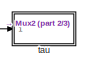
[diagram: root canvas - part 1/3, top right region]
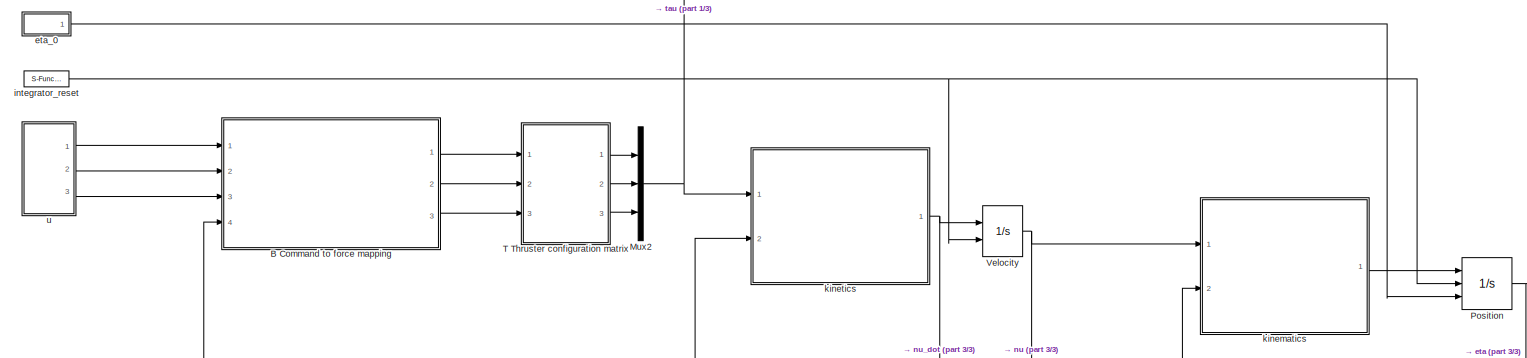
[diagram: root canvas - part 2/3, full width, middle band]
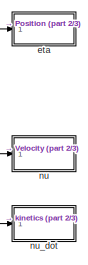
[diagram: root canvas - part 3/3, bottom right region]
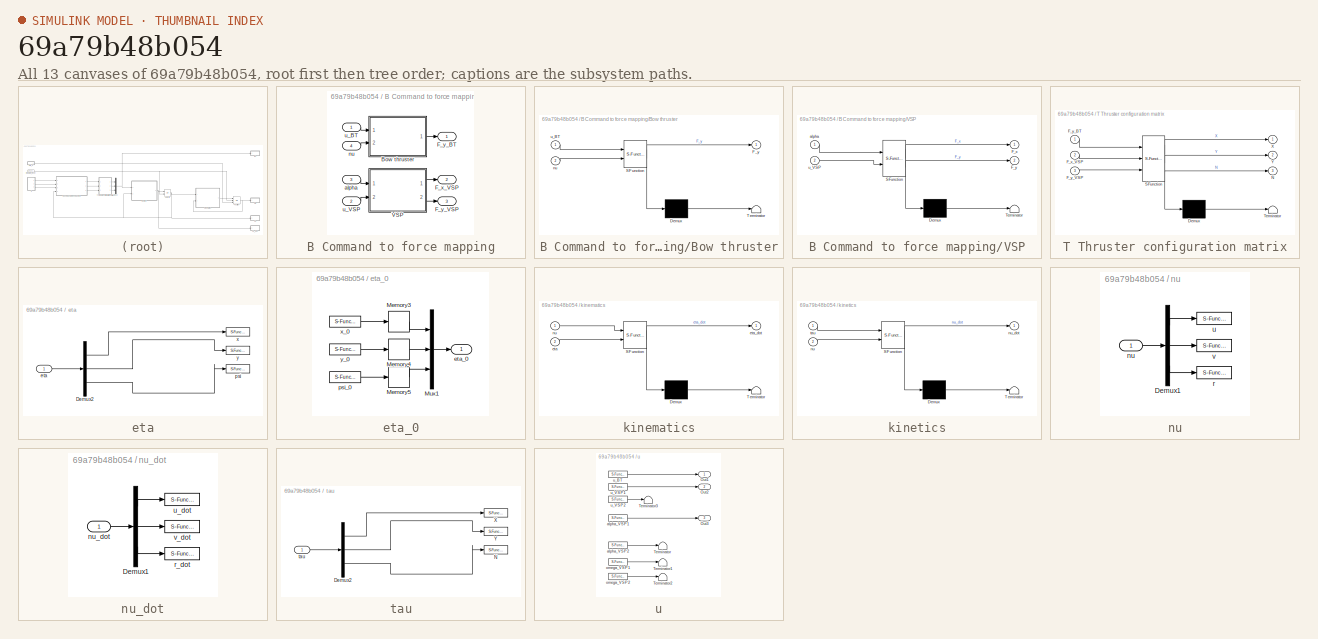
[diagram: thumbnail index - all 13 canvases of the model, root first then tree order]
MODEL slx_69a79b48b054
KIND model
BLOCK [SubSystem] B Command to force mapping
  Ports = [4, 3]
  RequestExecContextInheritance = off
BLOCK [SubSystem] B Command to force mapping/Bow thruster
  ErrorFcn = Stateflow.Translate.translate
  PermitHierarchicalResolution = ExplicitOnly
  Ports = [2, 1]
  RequestExecContextInheritance = off
  SFBlockType = MATLAB Function
  TreatAsAtomicUnit = on
BLOCK [Demux] B Command to force mapping/Bow thruster/ Demux 
  Outputs = 1
  Ports = [1, 1]
BLOCK [S-Function] B Command to force mapping/Bow thruster/ SFunction 
  EnableBusSupport = on
  FunctionName = sf_sfun
  PortCounts = [2 2]
  Ports = [2, 2]
  Tag = Stateflow S-Function CSEI_u 4
BLOCK [Terminator] B Command to force mapping/Bow thruster/ Terminator 
BLOCK [Outport] B Command to force mapping/Bow thruster/F_y
  IconDisplay = Port number
BLOCK [Inport] B Command to force mapping/Bow thruster/nu
  IconDisplay = Port number
  Port = 2
BLOCK [Inport] B Command to force mapping/Bow thruster/u_BT
  IconDisplay = Port number
BLOCK [Outport] B Command to force mapping/F_x_VSP
  IconDisplay = Port number
  Port = 2
BLOCK [Outport] B Command to force mapping/F_y_BT
  IconDisplay = Port number
BLOCK [Outport] B Command to force mapping/F_y_VSP
  IconDisplay = Port number
  Port = 3
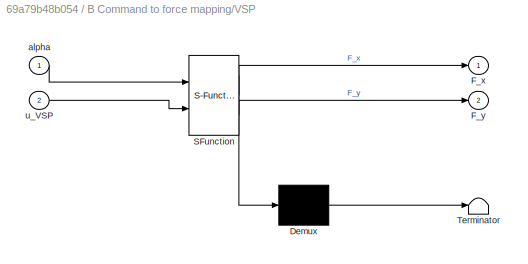
BLOCK [SubSystem] B Command to force mapping/VSP
  ErrorFcn = Stateflow.Translate.translate
  PermitHierarchicalResolution = ExplicitOnly
  Ports = [2, 2]
  RequestExecContextInheritance = off
  SFBlockType = MATLAB Function
  TreatAsAtomicUnit = on
BLOCK [Demux] B Command to force mapping/VSP/ Demux 
  Outputs = 1
  Ports = [1, 1]
BLOCK [S-Function] B Command to force mapping/VSP/ SFunction 
  EnableBusSupport = on
  FunctionName = sf_sfun
  PortCounts = [2 3]
  Ports = [2, 3]
  Tag = Stateflow S-Function CSEI_u 5
BLOCK [Terminator] B Command to force mapping/VSP/ Terminator 
BLOCK [Outport] B Command to force mapping/VSP/F_x
  IconDisplay = Port number
BLOCK [Outport] B Command to force mapping/VSP/F_y
  IconDisplay = Port number
  Port = 2
BLOCK [Inport] B Command to force mapping/VSP/alpha
  IconDisplay = Port number
BLOCK [Inport] B Command to force mapping/VSP/u_VSP
  IconDisplay = Port number
  Port = 2
BLOCK [Inport] B Command to force mapping/alpha
  IconDisplay = Port number
  Port = 3
BLOCK [Inport] B Command to force mapping/nu
  IconDisplay = Port number
  Port = 4
BLOCK [Inport] B Command to force mapping/u_BT
  IconDisplay = Port number
BLOCK [Inport] B Command to force mapping/u_VSP
  IconDisplay = Port number
  Port = 2
BLOCK [Mux] Mux2
  DisplayOption = bar
  Inputs = 3
  Ports = [3, 1]
BLOCK [Integrator] Position
  ExternalReset = either
  InitialCondition = [0 0 0]'
  InitialConditionSource = external
  Ports = [3, 1]
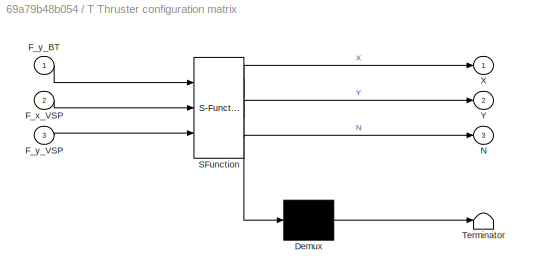
BLOCK [SubSystem] T Thruster configuration matrix
  ErrorFcn = Stateflow.Translate.translate
  PermitHierarchicalResolution = ExplicitOnly
  Ports = [3, 3]
  RequestExecContextInheritance = off
  SFBlockType = MATLAB Function
  TreatAsAtomicUnit = on
BLOCK [Demux] T Thruster configuration matrix/ Demux 
  Outputs = 1
  Ports = [1, 1]
BLOCK [S-Function] T Thruster configuration matrix/ SFunction 
  EnableBusSupport = on
  FunctionName = sf_sfun
  PortCounts = [3 4]
  Ports = [3, 4]
  Tag = Stateflow S-Function CSEI_u 3
BLOCK [Terminator] T Thruster configuration matrix/ Terminator 
BLOCK [Inport] T Thruster configuration matrix/F_x_VSP
  IconDisplay = Port number
  Port = 2
BLOCK [Inport] T Thruster configuration matrix/F_y_BT
  IconDisplay = Port number
BLOCK [Inport] T Thruster configuration matrix/F_y_VSP
  IconDisplay = Port number
  Port = 3
BLOCK [Outport] T Thruster configuration matrix/N
  IconDisplay = Port number
  Port = 3
BLOCK [Outport] T Thruster configuration matrix/X
  IconDisplay = Port number
BLOCK [Outport] T Thruster configuration matrix/Y
  IconDisplay = Port number
  Port = 2
BLOCK [Integrator] Velocity
  ExternalReset = either
  InitialCondition = [0 0 0]'
  Ports = [2, 1]
BLOCK [SubSystem] eta
  Ports = [1]
  RequestExecContextInheritance = off
BLOCK [Demux] eta/Demux2
  DisplayOption = bar
  Outputs = 3
  Ports = [1, 3]
BLOCK [Inport] eta/eta
  IconDisplay = Port number
BLOCK [S-Function] eta/psi
  CopyFcn = NIVeriStand_MDL_functions('', 'IO_copy');
  DeleteFcn = NIVeriStand_MDL_functions('', 'IO_delete');
  EnableBusSupport = off
  FunctionName = NIVeriStandIO
  MoveFcn = set_param(gcb, 'Mask', 'on');
  Parameters = width dtype portnum stime stype btype
  Ports = [1]
  Priority = 3
BLOCK [S-Function] eta/x
  CopyFcn = NIVeriStand_MDL_functions('', 'IO_copy');
  DeleteFcn = NIVeriStand_MDL_functions('', 'IO_delete');
  EnableBusSupport = off
  FunctionName = NIVeriStandIO
  MoveFcn = set_param(gcb, 'Mask', 'on');
  Parameters = width dtype portnum stime stype btype
  Ports = [1]
  Priority = 1
BLOCK [S-Function] eta/y
  CopyFcn = NIVeriStand_MDL_functions('', 'IO_copy');
  DeleteFcn = NIVeriStand_MDL_functions('', 'IO_delete');
  EnableBusSupport = off
  FunctionName = NIVeriStandIO
  MoveFcn = set_param(gcb, 'Mask', 'on');
  Parameters = width dtype portnum stime stype btype
  Ports = [1]
  Priority = 2
BLOCK [SubSystem] eta_0
  Ports = [0, 1]
  RequestExecContextInheritance = off
BLOCK [Memory] eta_0/Memory3
BLOCK [Memory] eta_0/Memory4
BLOCK [Memory] eta_0/Memory5
BLOCK [Mux] eta_0/Mux1
  DisplayOption = bar
  Inputs = 3
  Ports = [3, 1]
BLOCK [Outport] eta_0/eta_0
  IconDisplay = Port number
BLOCK [S-Function] eta_0/psi_0
  CopyFcn = NIVeriStand_MDL_functions('', 'IO_copy');
  DeleteFcn = NIVeriStand_MDL_functions('', 'IO_delete');
  EnableBusSupport = off
  FunctionName = NIVeriStandIO
  MoveFcn = set_param(gcb, 'Mask', 'on');
  Parameters = width dtype portnum stime stype btype
  Ports = [0, 1]
  Priority = 1
BLOCK [S-Function] eta_0/x_0
  CopyFcn = NIVeriStand_MDL_functions('', 'IO_copy');
  DeleteFcn = NIVeriStand_MDL_functions('', 'IO_delete');
  EnableBusSupport = off
  FunctionName = NIVeriStandIO
  MoveFcn = set_param(gcb, 'Mask', 'on');
  Parameters = width dtype portnum stime stype btype
  Ports = [0, 1]
  Priority = 2
BLOCK [S-Function] eta_0/y_0
  CopyFcn = NIVeriStand_MDL_functions('', 'IO_copy');
  DeleteFcn = NIVeriStand_MDL_functions('', 'IO_delete');
  EnableBusSupport = off
  FunctionName = NIVeriStandIO
  MoveFcn = set_param(gcb, 'Mask', 'on');
  Parameters = width dtype portnum stime stype btype
  Ports = [0, 1]
  Priority = 3
BLOCK [S-Function] integrator_reset
  CopyFcn = NIVeriStand_MDL_functions('', 'IO_copy');
  DeleteFcn = NIVeriStand_MDL_functions('', 'IO_delete');
  EnableBusSupport = off
  FunctionName = NIVeriStandIO
  MoveFcn = set_param(gcb, 'Mask', 'on');
  Parameters = width dtype portnum stime stype btype
  Ports = [0, 1]
  Priority = 1
BLOCK [SubSystem] kinematics
  ErrorFcn = Stateflow.Translate.translate
  PermitHierarchicalResolution = ExplicitOnly
  Ports = [2, 1]
  RequestExecContextInheritance = off
  SFBlockType = MATLAB Function
  TreatAsAtomicUnit = on
BLOCK [Demux] kinematics/ Demux 
  Outputs = 1
  Ports = [1, 1]
BLOCK [S-Function] kinematics/ SFunction 
  EnableBusSupport = on
  FunctionName = sf_sfun
  PortCounts = [2 2]
  Ports = [2, 2]
  Tag = Stateflow S-Function CSEI_u 1
BLOCK [Terminator] kinematics/ Terminator 
BLOCK [Inport] kinematics/eta
  IconDisplay = Port number
  Port = 2
BLOCK [Outport] kinematics/eta_dot
  IconDisplay = Port number
BLOCK [Inport] kinematics/nu
  IconDisplay = Port number
BLOCK [SubSystem] kinetics
  ErrorFcn = Stateflow.Translate.translate
  PermitHierarchicalResolution = ExplicitOnly
  Ports = [2, 1]
  RequestExecContextInheritance = off
  SFBlockType = MATLAB Function
  TreatAsAtomicUnit = on
BLOCK [Demux] kinetics/ Demux 
  Outputs = 1
  Ports = [1, 1]
BLOCK [S-Function] kinetics/ SFunction 
  EnableBusSupport = on
  FunctionName = sf_sfun
  PortCounts = [2 2]
  Ports = [2, 2]
  Tag = Stateflow S-Function CSEI_u 2
BLOCK [Terminator] kinetics/ Terminator 
BLOCK [Inport] kinetics/nu
  IconDisplay = Port number
  Port = 2
BLOCK [Outport] kinetics/nu_dot
  IconDisplay = Port number
BLOCK [Inport] kinetics/tau
  IconDisplay = Port number
BLOCK [SubSystem] nu
  Ports = [1]
  RequestExecContextInheritance = off
BLOCK [Demux] nu/Demux1
  DisplayOption = bar
  Outputs = 3
  Ports = [1, 3]
BLOCK [Inport] nu/nu
  IconDisplay = Port number
BLOCK [S-Function] nu/r
  CopyFcn = NIVeriStand_MDL_functions('', 'IO_copy');
  DeleteFcn = NIVeriStand_MDL_functions('', 'IO_delete');
  EnableBusSupport = off
  FunctionName = NIVeriStandIO
  MoveFcn = set_param(gcb, 'Mask', 'on');
  Parameters = width dtype portnum stime stype btype
  Ports = [1]
  Priority = 1
BLOCK [S-Function] nu/u
  CopyFcn = NIVeriStand_MDL_functions('', 'IO_copy');
  DeleteFcn = NIVeriStand_MDL_functions('', 'IO_delete');
  EnableBusSupport = off
  FunctionName = NIVeriStandIO
  MoveFcn = set_param(gcb, 'Mask', 'on');
  Parameters = width dtype portnum stime stype btype
  Ports = [1]
  Priority = 2
BLOCK [S-Function] nu/v
  CopyFcn = NIVeriStand_MDL_functions('', 'IO_copy');
  DeleteFcn = NIVeriStand_MDL_functions('', 'IO_delete');
  EnableBusSupport = off
  FunctionName = NIVeriStandIO
  MoveFcn = set_param(gcb, 'Mask', 'on');
  Parameters = width dtype portnum stime stype btype
  Ports = [1]
  Priority = 3
BLOCK [SubSystem] nu_dot
  Ports = [1]
  RequestExecContextInheritance = off
BLOCK [Demux] nu_dot/Demux1
  DisplayOption = bar
  Outputs = 3
  Ports = [1, 3]
BLOCK [Inport] nu_dot/nu_dot
  IconDisplay = Port number
BLOCK [S-Function] nu_dot/r_dot
  CopyFcn = NIVeriStand_MDL_functions('', 'IO_copy');
  DeleteFcn = NIVeriStand_MDL_functions('', 'IO_delete');
  EnableBusSupport = off
  FunctionName = NIVeriStandIO
  MoveFcn = set_param(gcb, 'Mask', 'on');
  Parameters = width dtype portnum stime stype btype
  Ports = [1]
  Priority = 1
BLOCK [S-Function] nu_dot/u_dot
  CopyFcn = NIVeriStand_MDL_functions('', 'IO_copy');
  DeleteFcn = NIVeriStand_MDL_functions('', 'IO_delete');
  EnableBusSupport = off
  FunctionName = NIVeriStandIO
  MoveFcn = set_param(gcb, 'Mask', 'on');
  Parameters = width dtype portnum stime stype btype
  Ports = [1]
  Priority = 2
BLOCK [S-Function] nu_dot/v_dot
  CopyFcn = NIVeriStand_MDL_functions('', 'IO_copy');
  DeleteFcn = NIVeriStand_MDL_functions('', 'IO_delete');
  EnableBusSupport = off
  FunctionName = NIVeriStandIO
  MoveFcn = set_param(gcb, 'Mask', 'on');
  Parameters = width dtype portnum stime stype btype
  Ports = [1]
  Priority = 3
BLOCK [SubSystem] tau
  Ports = [1]
  RequestExecContextInheritance = off
BLOCK [Demux] tau/Demux2
  DisplayOption = bar
  Outputs = 3
  Ports = [1, 3]
BLOCK [S-Function] tau/N
  CopyFcn = NIVeriStand_MDL_functions('', 'IO_copy');
  DeleteFcn = NIVeriStand_MDL_functions('', 'IO_delete');
  EnableBusSupport = off
  FunctionName = NIVeriStandIO
  MoveFcn = set_param(gcb, 'Mask', 'on');
  Parameters = width dtype portnum stime stype btype
  Ports = [1]
  Priority = 3
BLOCK [S-Function] tau/X
  CopyFcn = NIVeriStand_MDL_functions('', 'IO_copy');
  DeleteFcn = NIVeriStand_MDL_functions('', 'IO_delete');
  EnableBusSupport = off
  FunctionName = NIVeriStandIO
  MoveFcn = set_param(gcb, 'Mask', 'on');
  Parameters = width dtype portnum stime stype btype
  Ports = [1]
  Priority = 1
BLOCK [S-Function] tau/Y
  CopyFcn = NIVeriStand_MDL_functions('', 'IO_copy');
  DeleteFcn = NIVeriStand_MDL_functions('', 'IO_delete');
  EnableBusSupport = off
  FunctionName = NIVeriStandIO
  MoveFcn = set_param(gcb, 'Mask', 'on');
  Parameters = width dtype portnum stime stype btype
  Ports = [1]
  Priority = 2
BLOCK [Inport] tau/tau
  IconDisplay = Port number
BLOCK [SubSystem] u
  Ports = [0, 3]
  RequestExecContextInheritance = off
BLOCK [Outport] u/Out1
  IconDisplay = Port number
BLOCK [Outport] u/Out2
  IconDisplay = Port number
  Port = 2
BLOCK [Outport] u/Out3
  IconDisplay = Port number
  Port = 3
BLOCK [Terminator] u/Terminator
BLOCK [Terminator] u/Terminator1
BLOCK [Terminator] u/Terminator2
BLOCK [Terminator] u/Terminator3
BLOCK [S-Function] u/alpha_VSP1
  CopyFcn = NIVeriStand_MDL_functions('', 'IO_copy');
  DeleteFcn = NIVeriStand_MDL_functions('', 'IO_delete');
  EnableBusSupport = off
  FunctionName = NIVeriStandIO
  MoveFcn = set_param(gcb, 'Mask', 'on');
  Parameters = width dtype portnum stime stype btype
  Ports = [0, 1]
  Priority = 5
BLOCK [S-Function] u/alpha_VSP2
  CopyFcn = NIVeriStand_MDL_functions('', 'IO_copy');
  DeleteFcn = NIVeriStand_MDL_functions('', 'IO_delete');
  EnableBusSupport = off
  FunctionName = NIVeriStandIO
  MoveFcn = set_param(gcb, 'Mask', 'on');
  Parameters = width dtype portnum stime stype btype
  Ports = [0, 1]
  Priority = 6
BLOCK [S-Function] u/omega_VSP1
  CopyFcn = NIVeriStand_MDL_functions('', 'IO_copy');
  DeleteFcn = NIVeriStand_MDL_functions('', 'IO_delete');
  EnableBusSupport = off
  FunctionName = NIVeriStandIO
  MoveFcn = set_param(gcb, 'Mask', 'on');
  Parameters = width dtype portnum stime stype btype
  Ports = [0, 1]
  Priority = 7
BLOCK [S-Function] u/omega_VSP2
  CopyFcn = NIVeriStand_MDL_functions('', 'IO_copy');
  DeleteFcn = NIVeriStand_MDL_functions('', 'IO_delete');
  EnableBusSupport = off
  FunctionName = NIVeriStandIO
  MoveFcn = set_param(gcb, 'Mask', 'on');
  Parameters = width dtype portnum stime stype btype
  Ports = [0, 1]
  Priority = 8
BLOCK [S-Function] u/u_BT
  CopyFcn = NIVeriStand_MDL_functions('', 'IO_copy');
  DeleteFcn = NIVeriStand_MDL_functions('', 'IO_delete');
  EnableBusSupport = off
  FunctionName = NIVeriStandIO
  MoveFcn = set_param(gcb, 'Mask', 'on');
  Parameters = width dtype portnum stime stype btype
  Ports = [0, 1]
  Priority = 2
BLOCK [S-Function] u/u_VSP1
  CopyFcn = NIVeriStand_MDL_functions('', 'IO_copy');
  DeleteFcn = NIVeriStand_MDL_functions('', 'IO_delete');
  EnableBusSupport = off
  FunctionName = NIVeriStandIO
  MoveFcn = set_param(gcb, 'Mask', 'on');
  Parameters = width dtype portnum stime stype btype
  Ports = [0, 1]
  Priority = 3
BLOCK [S-Function] u/u_VSP2
  CopyFcn = NIVeriStand_MDL_functions('', 'IO_copy');
  DeleteFcn = NIVeriStand_MDL_functions('', 'IO_delete');
  EnableBusSupport = off
  FunctionName = NIVeriStandIO
  MoveFcn = set_param(gcb, 'Mask', 'on');
  Parameters = width dtype portnum stime stype btype
  Ports = [0, 1]
  Priority = 4
LINE B Command to force mapping/Bow thruster:1 -> B Command to force mapping/F_y_BT:1
LINE B Command to force mapping/VSP:1 -> B Command to force mapping/F_x_VSP:1
LINE B Command to force mapping/VSP:2 -> B Command to force mapping/F_y_VSP:1
LINE B Command to force mapping/alpha:1 -> B Command to force mapping/VSP:1
LINE B Command to force mapping/nu:1 -> B Command to force mapping/Bow thruster:2
LINE B Command to force mapping/u_BT:1 -> B Command to force mapping/Bow thruster:1
LINE B Command to force mapping/u_VSP:1 -> B Command to force mapping/VSP:2
LINE B Command to force mapping:1 -> T Thruster configuration matrix:1
LINE B Command to force mapping:2 -> T Thruster configuration matrix:2
LINE B Command to force mapping:3 -> T Thruster configuration matrix:3
NET Mux2:1 -> kinetics:1, tau:1
NET Position:1 -> eta:1, kinematics:2
LINE T Thruster configuration matrix:1 -> Mux2:1
LINE T Thruster configuration matrix:2 -> Mux2:2
LINE T Thruster configuration matrix:3 -> Mux2:3
NET Velocity:1 -> B Command to force mapping:4, kinematics:1, kinetics:2, nu:1
LINE eta/Demux2:1 -> eta/x:1
LINE eta/Demux2:2 -> eta/y:1
LINE eta/Demux2:3 -> eta/psi:1
LINE eta/eta:1 -> eta/Demux2:1
LINE eta_0/Memory3:1 -> eta_0/Mux1:1
LINE eta_0/Memory4:1 -> eta_0/Mux1:2
LINE eta_0/Memory5:1 -> eta_0/Mux1:3
LINE eta_0/Mux1:1 -> eta_0/eta_0:1
LINE eta_0/psi_0:1 -> eta_0/Memory5:1
LINE eta_0/x_0:1 -> eta_0/Memory3:1
LINE eta_0/y_0:1 -> eta_0/Memory4:1
LINE eta_0:1 -> Position:3
NET integrator_reset:1 -> Position:2, Velocity:2
LINE kinematics:1 -> Position:1
NET kinetics:1 -> Velocity:1, nu_dot:1
LINE nu/Demux1:1 -> nu/u:1
LINE nu/Demux1:2 -> nu/v:1
LINE nu/Demux1:3 -> nu/r:1
LINE nu/nu:1 -> nu/Demux1:1
LINE nu_dot/Demux1:1 -> nu_dot/u_dot:1
LINE nu_dot/Demux1:2 -> nu_dot/v_dot:1
LINE nu_dot/Demux1:3 -> nu_dot/r_dot:1
LINE nu_dot/nu_dot:1 -> nu_dot/Demux1:1
LINE tau/Demux2:1 -> tau/X:1
LINE tau/Demux2:2 -> tau/Y:1
LINE tau/Demux2:3 -> tau/N:1
LINE tau/tau:1 -> tau/Demux2:1
LINE u/alpha_VSP1:1 -> u/Out3:1
LINE u/alpha_VSP2:1 -> u/Terminator:1
LINE u/omega_VSP1:1 -> u/Terminator1:1
LINE u/omega_VSP2:1 -> u/Terminator2:1
LINE u/u_BT:1 -> u/Out1:1
LINE u/u_VSP1:1 -> u/Out2:1
LINE u/u_VSP2:1 -> u/Terminator3:1
LINE u:1 -> B Command to force mapping:1
LINE u:2 -> B Command to force mapping:2
LINE u:3 -> B Command to force mapping:3
note: NET lines group one-source signal fan-out (src -> all destinations, sorted); 1:1 wires keep LINE
